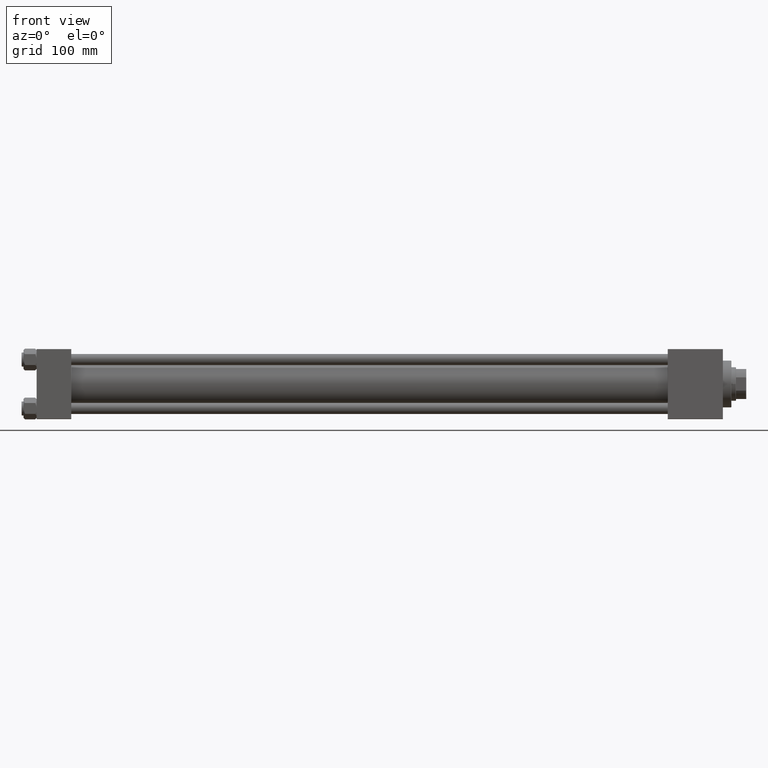
[diagram: clean part render]
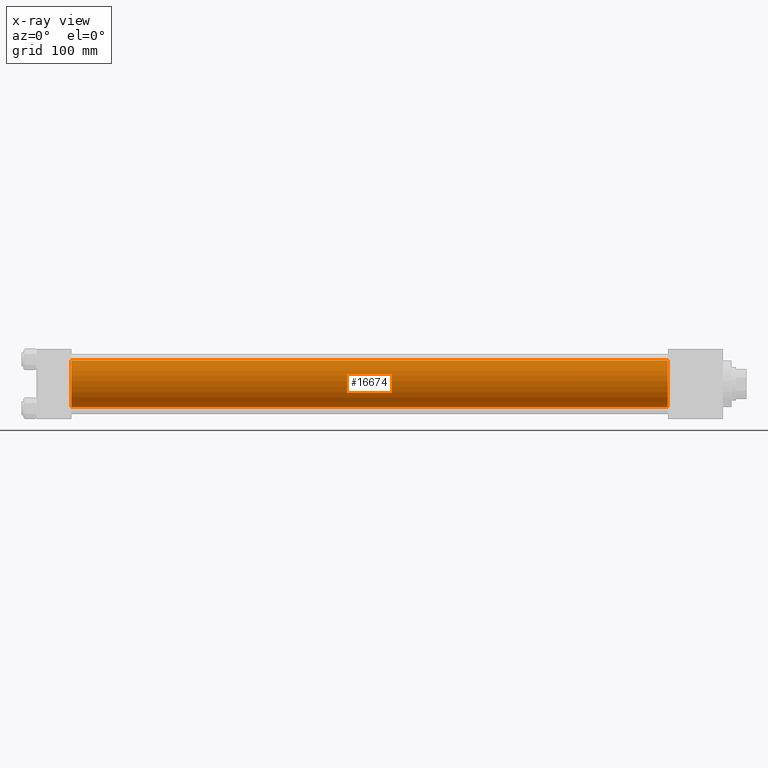
[diagram: x-ray — body ghosted, one internal face saturated and labeled with its STEP entity id]
A machine part, front view, then the same camera in x-ray: the body is ghosted and one INTERNAL B-rep face — a face not visible from any outside direction — is saturated and labeled: STEP entity #16674.
In plain terms, the highlighted cylindrical surface (edge-blend (fillet) strip) has radius 25 mm, axis along (-1, -0, -0).
Its self-contained STEP definition (entity closure, byte-faithful):
#610 = ORIENTED_EDGE ( 'NONE', *, *, #44691, .F. ) ;
#1777 = VERTEX_POINT ( 'NONE', #38443 ) ;
#3607 = CARTESIAN_POINT ( 'NONE',  ( 37.00000000000000000, -2.602085213965210642E-15, 25.00000000000000000 ) ) ;
#4113 = EDGE_CURVE ( 'NONE', #34933, #1777, #14288, .T. ) ;
#4619 = CARTESIAN_POINT ( 'NONE',  ( 675.0000000000000000, -2.602085213965210642E-15, 0.000000000000000000 ) ) ;
#6266 = CARTESIAN_POINT ( 'NONE',  ( 675.0000000000000000, 4.595317839031724996E-16, -25.00000000000000000 ) ) ;
#8684 = DIRECTION ( 'NONE',  ( 0.000000000000000000, 0.000000000000000000, -1.000000000000000000 ) ) ;
#8839 = VERTEX_POINT ( 'NONE', #6266 ) ;
#9433 = AXIS2_PLACEMENT_3D ( 'NONE', #42720, #12507, #47289 ) ;
#9560 = LINE ( 'NONE', #13114, #28987 ) ;
#11621 = EDGE_CURVE ( 'NONE', #36229, #8839, #37952, .T. ) ;
#12507 = DIRECTION ( 'NONE',  ( 1.000000000000000000, 0.000000000000000000, 0.000000000000000000 ) ) ;
#12981 = AXIS2_PLACEMENT_3D ( 'NONE', #23260, #30382, #14886 ) ;
#13114 = CARTESIAN_POINT ( 'NONE',  ( 675.0000000000000000, -2.602085213965210642E-15, 25.00000000000000000 ) ) ;
#14288 = CIRCLE ( 'NONE', #9433, 25.00000000000000000 ) ;
#14886 = DIRECTION ( 'NONE',  ( 0.000000000000000000, 0.000000000000000000, 1.000000000000000000 ) ) ;
#15255 = AXIS2_PLACEMENT_3D ( 'NONE', #4619, #47027, #8684 ) ;
#16089 = CARTESIAN_POINT ( 'NONE',  ( 675.0000000000000000, -2.602085213965210642E-15, 25.00000000000000000 ) ) ;
#16674 = ADVANCED_FACE ( 'NONE', ( #42535 ), #41560, .F. ) ;
#16823 = EDGE_LOOP ( 'NONE', ( #33932, #39576, #17449, #610 ) ) ;
#17449 = ORIENTED_EDGE ( 'NONE', *, *, #4113, .F. ) ;
#21382 = EDGE_CURVE ( 'NONE', #8839, #1777, #47944, .T. ) ;
#23260 = CARTESIAN_POINT ( 'NONE',  ( 675.0000000000000000, -2.602085213965210642E-15, 0.000000000000000000 ) ) ;
#28987 = VECTOR ( 'NONE', #33184, 1000.000000000000000 ) ;
#30382 = DIRECTION ( 'NONE',  ( -1.000000000000000000, -0.000000000000000000, -0.000000000000000000 ) ) ;
#31705 = DIRECTION ( 'NONE',  ( -1.000000000000000000, -0.000000000000000000, -0.000000000000000000 ) ) ;
#33184 = DIRECTION ( 'NONE',  ( -1.000000000000000000, -0.000000000000000000, -0.000000000000000000 ) ) ;
#33932 = ORIENTED_EDGE ( 'NONE', *, *, #11621, .T. ) ;
#34933 = VERTEX_POINT ( 'NONE', #3607 ) ;
#36229 = VERTEX_POINT ( 'NONE', #16089 ) ;
#37952 = CIRCLE ( 'NONE', #15255, 25.00000000000000000 ) ;
#38443 = CARTESIAN_POINT ( 'NONE',  ( 37.00000000000000000, 4.595317839031724996E-16, -25.00000000000000000 ) ) ;
#39576 = ORIENTED_EDGE ( 'NONE', *, *, #21382, .T. ) ;
#40071 = CARTESIAN_POINT ( 'NONE',  ( 675.0000000000000000, 4.595317839031724996E-16, -25.00000000000000000 ) ) ;
#41560 = CYLINDRICAL_SURFACE ( 'NONE', #12981, 25.00000000000000000 ) ;
#42535 = FACE_OUTER_BOUND ( 'NONE', #16823, .T. ) ;
#42720 = CARTESIAN_POINT ( 'NONE',  ( 37.00000000000000000, -2.602085213965210642E-15, 0.000000000000000000 ) ) ;
#44691 = EDGE_CURVE ( 'NONE', #36229, #34933, #9560, .T. ) ;
#44731 = VECTOR ( 'NONE', #31705, 1000.000000000000000 ) ;
#47027 = DIRECTION ( 'NONE',  ( 1.000000000000000000, 0.000000000000000000, 0.000000000000000000 ) ) ;
#47289 = DIRECTION ( 'NONE',  ( 0.000000000000000000, 0.000000000000000000, -1.000000000000000000 ) ) ;
#47944 = LINE ( 'NONE', #40071, #44731 ) ;